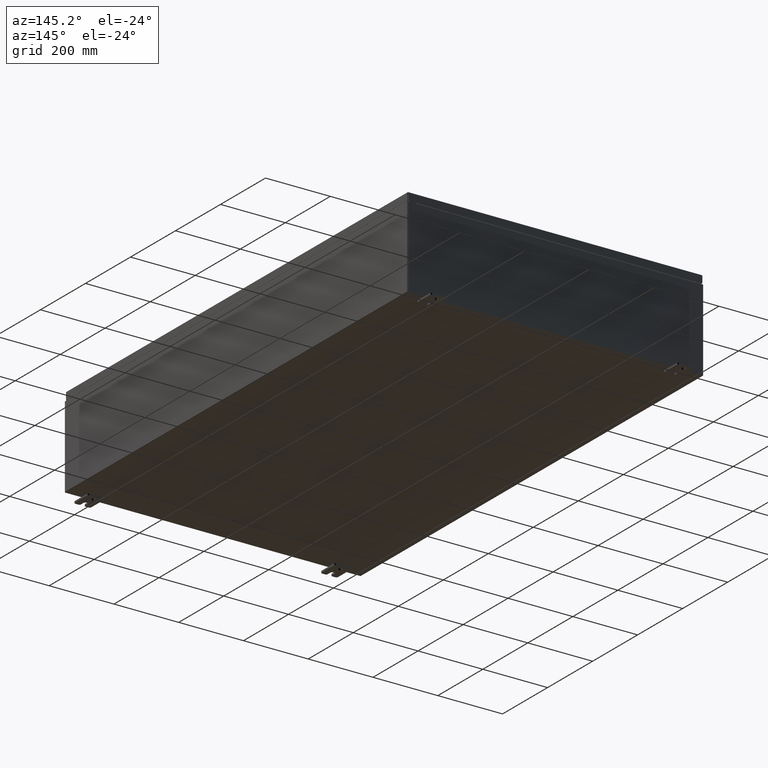
[diagram: clean part render]
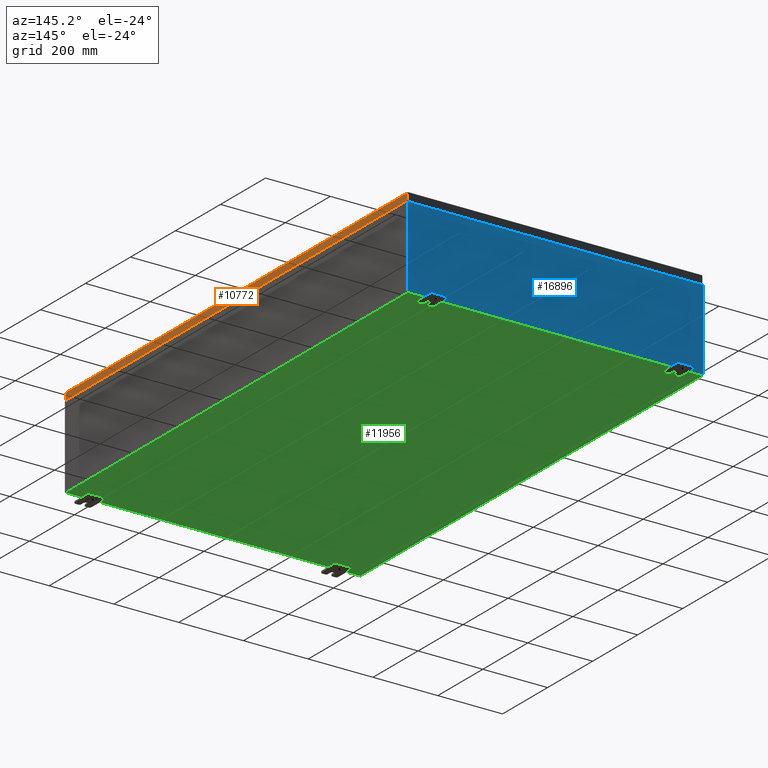
[diagram: same view with three faces highlighted in distinct colors, each labeled with its STEP entity id]
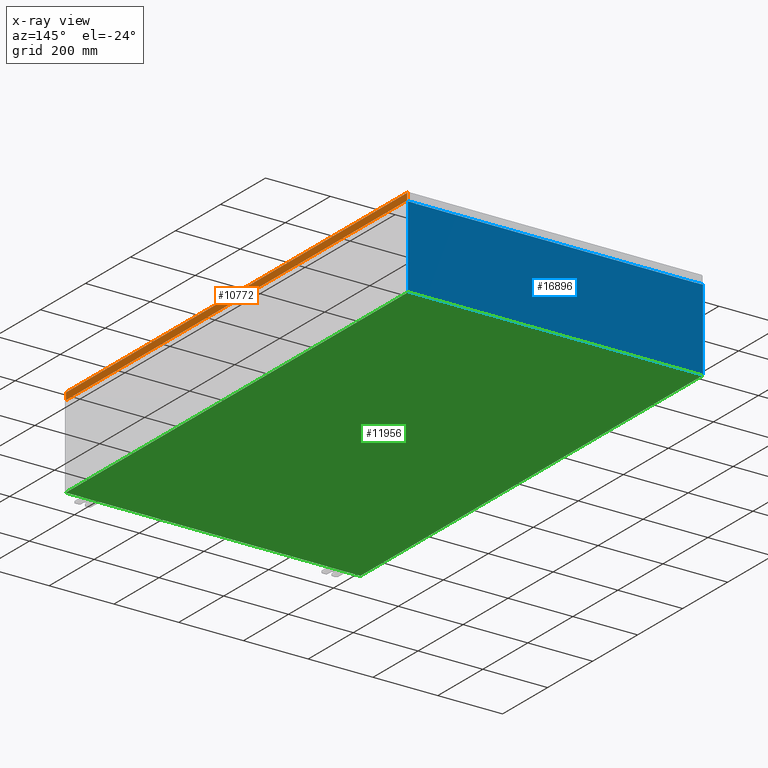
[diagram: x-ray of the same camera — body ghosted, the three highlighted faces saturated]
A machine part, auxiliary view with three faces highlighted in distinct colors.
The next image is the same camera in x-ray (body ghosted, the three faces saturated) — at least one of them is partly hidden behind the body in this view.
Their STEP definitions:

[orange] entity #10772 — the highlighted planar face has unit normal (1, 0, 0).
#3796 = CARTESIAN_POINT ( 'NONE',  ( 17.93750000000000000, 29.84865786437627500, -0.08770000000000008300 ) ) ;
#6091 = EDGE_CURVE ( 'NONE', #67473, #12984, #7999, .T. ) ;
#7999 = LINE ( 'NONE', #21186, #48868 ) ;
#8008 = CARTESIAN_POINT ( 'NONE',  ( 17.93750000000000000, -29.84865786437626100, -0.07469999999999980800 ) ) ;
#8826 = PLANE ( 'NONE',  #63696 ) ;
#9900 = LINE ( 'NONE', #46180, #36633 ) ;
#10772 = ADVANCED_FACE ( 'NONE', ( #67148 ), #8826, .T. ) ;
#12984 = VERTEX_POINT ( 'NONE', #58880 ) ;
#16790 = EDGE_LOOP ( 'NONE', ( #34291, #51374, #38243, #68511 ) ) ;
#19515 = DIRECTION ( 'NONE',  ( 1.000000000000000000, 0.0000000000000000000, 2.532419924601866100E-015 ) ) ;
#21186 = CARTESIAN_POINT ( 'NONE',  ( 17.93750000000000000, -29.93749999999998900, -0.9376999999999997600 ) ) ;
#23709 = EDGE_CURVE ( 'NONE', #67473, #30657, #9900, .T. ) ;
#25759 = VECTOR ( 'NONE', #36428, 39.37007874015748100 ) ;
#25885 = CARTESIAN_POINT ( 'NONE',  ( 17.93750000000000000, 0.0000000000000000000, -0.08770000000000008300 ) ) ;
#27804 = EDGE_CURVE ( 'NONE', #30657, #52398, #66772, .T. ) ;
#30657 = VERTEX_POINT ( 'NONE', #3796 ) ;
#32348 = EDGE_CURVE ( 'NONE', #12984, #52398, #36774, .T. ) ;
#34291 = ORIENTED_EDGE ( 'NONE', *, *, #32348, .F. ) ;
#36428 = DIRECTION ( 'NONE',  ( 0.0000000000000000000, -1.000000000000000000, 0.0000000000000000000 ) ) ;
#36633 = VECTOR ( 'NONE', #40183, 39.37007874015748100 ) ;
#36774 = LINE ( 'NONE', #8008, #38458 ) ;
#38243 = ORIENTED_EDGE ( 'NONE', *, *, #23709, .T. ) ;
#38458 = VECTOR ( 'NONE', #40015, 39.37007874015748100 ) ;
#40015 = DIRECTION ( 'NONE',  ( -2.532419924601866100E-015, -6.982962677686269100E-015, 1.000000000000000000 ) ) ;
#40183 = DIRECTION ( 'NONE',  ( -2.532419924601866100E-015, -6.982962677686269100E-015, 1.000000000000000000 ) ) ;
#42807 = CARTESIAN_POINT ( 'NONE',  ( 17.93750000000000000, -29.84865786437626100, -0.08770000000000008300 ) ) ;
#46159 = CARTESIAN_POINT ( 'NONE',  ( 17.93750000000000000, 0.0000000000000000000, 4.568609605355755400E-014 ) ) ;
#46180 = CARTESIAN_POINT ( 'NONE',  ( 17.93750000000000000, 29.84865786437627500, 2.541181598995237700E-013 ) ) ;
#48868 = VECTOR ( 'NONE', #64032, 39.37007874015748100 ) ;
#51374 = ORIENTED_EDGE ( 'NONE', *, *, #6091, .F. ) ;
#52398 = VERTEX_POINT ( 'NONE', #42807 ) ;
#56927 = DIRECTION ( 'NONE',  ( 2.532419924601866100E-015, 0.0000000000000000000, -1.000000000000000000 ) ) ;
#58880 = CARTESIAN_POINT ( 'NONE',  ( 17.93750000000000000, -29.84865786437625700, -0.9376999999999996400 ) ) ;
#63696 = AXIS2_PLACEMENT_3D ( 'NONE', #46159, #19515, #56927 ) ;
#64032 = DIRECTION ( 'NONE',  ( 0.0000000000000000000, -1.000000000000000000, 0.0000000000000000000 ) ) ;
#65962 = CARTESIAN_POINT ( 'NONE',  ( 17.93750000000000000, 29.84865786437627800, -0.9376999999999997600 ) ) ;
#66772 = LINE ( 'NONE', #25885, #25759 ) ;
#67148 = FACE_OUTER_BOUND ( 'NONE', #16790, .T. ) ;
#67473 = VERTEX_POINT ( 'NONE', #65962 ) ;
#68511 = ORIENTED_EDGE ( 'NONE', *, *, #27804, .T. ) ;

[blue] entity #16896 — the highlighted planar face has unit normal (0, -1, 0).
#971 = CARTESIAN_POINT ( 'NONE',  ( -17.92530000000000000, 0.0000000000000000000, 4.925300000000000000 ) ) ;
#976 = CARTESIAN_POINT ( 'NONE',  ( 16.88720000000000000, 0.0000000000000000000, 0.0000000000000000000 ) ) ;
#988 = EDGE_CURVE ( 'NONE', #38440, #10209, #59912, .T. ) ;
#1758 = CARTESIAN_POINT ( 'NONE',  ( -16.88720000000000000, -0.0000000000000000000, 4.874950000000000100 ) ) ;
#1994 = CARTESIAN_POINT ( 'NONE',  ( -16.92454999999999600, -0.0000000000000000000, 0.0000000000000000000 ) ) ;
#2096 = VERTEX_POINT ( 'NONE', #1758 ) ;
#2519 = CARTESIAN_POINT ( 'NONE',  ( -16.88720000000000000, -7.171100983368691200E-016, 4.912300000000000100 ) ) ;
#4505 = VERTEX_POINT ( 'NONE', #58386 ) ;
#5766 = VERTEX_POINT ( 'NONE', #56108 ) ;
#5870 = ORIENTED_EDGE ( 'NONE', *, *, #45275, .T. ) ;
#6391 = DIRECTION ( 'NONE',  ( 1.000000000000000000, 0.0000000000000000000, 0.0000000000000000000 ) ) ;
#6975 = CARTESIAN_POINT ( 'NONE',  ( 16.90587500000000200, 0.0000000000000000000, 4.874950000000000100 ) ) ;
#7086 = ORIENTED_EDGE ( 'NONE', *, *, #988, .F. ) ;
#8403 = EDGE_CURVE ( 'NONE', #10209, #56115, #42085, .T. ) ;
#10209 = VERTEX_POINT ( 'NONE', #47153 ) ;
#10759 = VECTOR ( 'NONE', #34527, 39.37007874015748100 ) ;
#12301 = DIRECTION ( 'NONE',  ( 0.0000000000000000000, 0.0000000000000000000, -1.000000000000000000 ) ) ;
#12502 = LINE ( 'NONE', #971, #53436 ) ;
#16843 = DIRECTION ( 'NONE',  ( 1.000000000000000000, 0.0000000000000000000, 0.0000000000000000000 ) ) ;
#16896 = ADVANCED_FACE ( 'NONE', ( #43226 ), #41488, .F. ) ;
#17369 = CARTESIAN_POINT ( 'NONE',  ( -17.92530000000000000, 0.0000000000000000000, -4.925300000000000000 ) ) ;
#17740 = ORIENTED_EDGE ( 'NONE', *, *, #37641, .F. ) ;
#20183 = DIRECTION ( 'NONE',  ( 0.0000000000000000000, -1.000000000000000000, 0.0000000000000000000 ) ) ;
#20368 = CARTESIAN_POINT ( 'NONE',  ( 17.92530000000000000, 0.0000000000000000000, 4.925300000000000000 ) ) ;
#20375 = EDGE_CURVE ( 'NONE', #40971, #2096, #53553, .T. ) ;
#20997 = VECTOR ( 'NONE', #48861, 39.37007874015748100 ) ;
#21614 = VECTOR ( 'NONE', #22780, 39.37007874015748100 ) ;
#22197 = CARTESIAN_POINT ( 'NONE',  ( -17.92530000000000000, 0.0000000000000000000, 4.925300000000000000 ) ) ;
#22780 = DIRECTION ( 'NONE',  ( -1.000000000000000000, -0.0000000000000000000, -0.0000000000000000000 ) ) ;
#23449 = DIRECTION ( 'NONE',  ( 0.0000000000000000000, 0.0000000000000000000, 1.000000000000000000 ) ) ;
#23751 = VECTOR ( 'NONE', #33404, 39.37007874015748100 ) ;
#23791 = CIRCLE ( 'NONE', #68224, 0.01867499999999949400 ) ;
#24253 = DIRECTION ( 'NONE',  ( 0.0000000000000000000, 0.0000000000000000000, -1.000000000000000000 ) ) ;
#24409 = LINE ( 'NONE', #43518, #20997 ) ;
#25110 = CARTESIAN_POINT ( 'NONE',  ( -16.88720000000000000, -7.171100983368691200E-016, 4.912300000000000100 ) ) ;
#25414 = VECTOR ( 'NONE', #16843, 39.37007874015748100 ) ;
#25978 = VERTEX_POINT ( 'NONE', #17369 ) ;
#26305 = EDGE_CURVE ( 'NONE', #56226, #46705, #12502, .T. ) ;
#26411 = CARTESIAN_POINT ( 'NONE',  ( -16.90587499999999800, 0.0000000000000000000, 4.874950000000000100 ) ) ;
#26723 = CARTESIAN_POINT ( 'NONE',  ( -17.92530000000000000, 0.0000000000000000000, 4.925300000000000000 ) ) ;
#27313 = EDGE_CURVE ( 'NONE', #40971, #4505, #51745, .T. ) ;
#28790 = DIRECTION ( 'NONE',  ( 0.0000000000000000000, 0.0000000000000000000, -1.000000000000000000 ) ) ;
#29060 = LINE ( 'NONE', #50871, #55822 ) ;
#29266 = VERTEX_POINT ( 'NONE', #20368 ) ;
#31564 = CARTESIAN_POINT ( 'NONE',  ( 17.92530000000000000, 0.0000000000000000000, -4.925300000000000000 ) ) ;
#31808 = DIRECTION ( 'NONE',  ( 0.0000000000000000000, 0.0000000000000000000, -1.000000000000000000 ) ) ;
#33404 = DIRECTION ( 'NONE',  ( 0.0000000000000000000, 0.0000000000000000000, 1.000000000000000000 ) ) ;
#33593 = CARTESIAN_POINT ( 'NONE',  ( -17.92530000000000000, 0.0000000000000000000, -4.925300000000000000 ) ) ;
#34527 = DIRECTION ( 'NONE',  ( 1.000000000000000000, 0.0000000000000000000, 0.0000000000000000000 ) ) ;
#35919 = LINE ( 'NONE', #33593, #21614 ) ;
#36045 = VECTOR ( 'NONE', #28790, 39.37007874015748100 ) ;
#37402 = ORIENTED_EDGE ( 'NONE', *, *, #45336, .F. ) ;
#37641 = EDGE_CURVE ( 'NONE', #2096, #5766, #23791, .T. ) ;
#37733 = CARTESIAN_POINT ( 'NONE',  ( -16.92454999999999600, 0.0000000000000000000, 4.925300000000000000 ) ) ;
#38195 = EDGE_LOOP ( 'NONE', ( #53806, #17740, #68208, #53895, #37402, #52607, #7086, #5870, #38608, #46164, #54771, #66714 ) ) ;
#38440 = VERTEX_POINT ( 'NONE', #62615 ) ;
#38608 = ORIENTED_EDGE ( 'NONE', *, *, #67022, .T. ) ;
#39684 = LINE ( 'NONE', #976, #23751 ) ;
#40971 = VERTEX_POINT ( 'NONE', #25110 ) ;
#41378 = EDGE_CURVE ( 'NONE', #25978, #56226, #24409, .T. ) ;
#41488 = PLANE ( 'NONE',  #52712 ) ;
#42085 = CIRCLE ( 'NONE', #68109, 0.01867499999999949400 ) ;
#43226 = FACE_OUTER_BOUND ( 'NONE', #38195, .T. ) ;
#43518 = CARTESIAN_POINT ( 'NONE',  ( -17.92530000000000000, 0.0000000000000000000, 4.925300000000000000 ) ) ;
#44309 = DIRECTION ( 'NONE',  ( -0.0000000000000000000, 1.000000000000000000, -0.0000000000000000000 ) ) ;
#44919 = VERTEX_POINT ( 'NONE', #31564 ) ;
#45275 = EDGE_CURVE ( 'NONE', #38440, #29266, #53821, .T. ) ;
#45336 = EDGE_CURVE ( 'NONE', #56115, #4505, #39684, .T. ) ;
#45699 = VECTOR ( 'NONE', #55510, 39.37007874015748100 ) ;
#46164 = ORIENTED_EDGE ( 'NONE', *, *, #52022, .T. ) ;
#46705 = VERTEX_POINT ( 'NONE', #37733 ) ;
#47153 = CARTESIAN_POINT ( 'NONE',  ( 16.92455000000000000, 0.0000000000000000000, 4.874950000000000100 ) ) ;
#47223 = EDGE_CURVE ( 'NONE', #5766, #46705, #62970, .T. ) ;
#47981 = CARTESIAN_POINT ( 'NONE',  ( 16.88720000000000000, 0.0000000000000000000, 4.874950000000000100 ) ) ;
#48861 = DIRECTION ( 'NONE',  ( -0.0000000000000000000, -0.0000000000000000000, 1.000000000000000000 ) ) ;
#50871 = CARTESIAN_POINT ( 'NONE',  ( 17.92530000000000000, 0.0000000000000000000, 4.925300000000000000 ) ) ;
#51745 = LINE ( 'NONE', #2519, #10759 ) ;
#52022 = EDGE_CURVE ( 'NONE', #44919, #25978, #35919, .T. ) ;
#52218 = CARTESIAN_POINT ( 'NONE',  ( 0.0000000000000000000, 0.0000000000000000000, 0.0000000000000000000 ) ) ;
#52607 = ORIENTED_EDGE ( 'NONE', *, *, #8403, .F. ) ;
#52712 = AXIS2_PLACEMENT_3D ( 'NONE', #52218, #20183, #57583 ) ;
#53436 = VECTOR ( 'NONE', #6391, 39.37007874015748100 ) ;
#53553 = LINE ( 'NONE', #66221, #36045 ) ;
#53806 = ORIENTED_EDGE ( 'NONE', *, *, #47223, .F. ) ;
#53821 = LINE ( 'NONE', #22197, #25414 ) ;
#53895 = ORIENTED_EDGE ( 'NONE', *, *, #27313, .T. ) ;
#54771 = ORIENTED_EDGE ( 'NONE', *, *, #41378, .T. ) ;
#55510 = DIRECTION ( 'NONE',  ( -8.681145560800009800E-014, 0.0000000000000000000, -1.000000000000000000 ) ) ;
#55822 = VECTOR ( 'NONE', #24253, 39.37007874015748100 ) ;
#56108 = CARTESIAN_POINT ( 'NONE',  ( -16.92454999999999600, 0.0000000000000000000, 4.874950000000000100 ) ) ;
#56115 = VERTEX_POINT ( 'NONE', #47981 ) ;
#56226 = VERTEX_POINT ( 'NONE', #26723 ) ;
#56680 = CARTESIAN_POINT ( 'NONE',  ( 16.92454999999957700, -0.0000000000000000000, -1.469244821010341400E-012 ) ) ;
#57583 = DIRECTION ( 'NONE',  ( 0.0000000000000000000, -0.0000000000000000000, -1.000000000000000000 ) ) ;
#58386 = CARTESIAN_POINT ( 'NONE',  ( 16.88720000000000000, 0.0000000000000000000, 4.912300000000000100 ) ) ;
#59912 = LINE ( 'NONE', #56680, #45699 ) ;
#61265 = VECTOR ( 'NONE', #23449, 39.37007874015748100 ) ;
#62615 = CARTESIAN_POINT ( 'NONE',  ( 16.92455000000000000, 0.0000000000000000000, 4.925300000000000000 ) ) ;
#62970 = LINE ( 'NONE', #1994, #61265 ) ;
#63861 = DIRECTION ( 'NONE',  ( -0.0000000000000000000, 1.000000000000000000, -0.0000000000000000000 ) ) ;
#66221 = CARTESIAN_POINT ( 'NONE',  ( -16.88720000000000000, -0.0000000000000000000, 0.0000000000000000000 ) ) ;
#66714 = ORIENTED_EDGE ( 'NONE', *, *, #26305, .T. ) ;
#67022 = EDGE_CURVE ( 'NONE', #29266, #44919, #29060, .T. ) ;
#68109 = AXIS2_PLACEMENT_3D ( 'NONE', #6975, #44309, #12301 ) ;
#68208 = ORIENTED_EDGE ( 'NONE', *, *, #20375, .F. ) ;
#68224 = AXIS2_PLACEMENT_3D ( 'NONE', #26411, #63861, #31808 ) ;

[green] entity #11956 — the highlighted planar face has unit normal (0, 0, -1).
#672 = DIRECTION ( 'NONE',  ( -0.0000000000000000000, 1.000000000000000000, -0.0000000000000000000 ) ) ;
#3596 = DIRECTION ( 'NONE',  ( 0.0000000000000000000, 0.0000000000000000000, -1.000000000000000000 ) ) ;
#4894 = LINE ( 'NONE', #5848, #58361 ) ;
#5848 = CARTESIAN_POINT ( 'NONE',  ( -17.91230000000000200, -29.92530000000002100, -0.07469999999999994700 ) ) ;
#11413 = CARTESIAN_POINT ( 'NONE',  ( -17.91230000000000200, -29.92530000000001100, -0.07469999999999994700 ) ) ;
#11654 = CARTESIAN_POINT ( 'NONE',  ( 17.91229999999999800, 29.92529999999999300, -0.07469999999999994700 ) ) ;
#11956 = ADVANCED_FACE ( 'NONE', ( #56993 ), #35584, .T. ) ;
#14247 = VECTOR ( 'NONE', #16995, 39.37007874015748100 ) ;
#15499 = DIRECTION ( 'NONE',  ( -1.000000000000000000, -0.0000000000000000000, -0.0000000000000000000 ) ) ;
#16548 = ORIENTED_EDGE ( 'NONE', *, *, #20005, .F. ) ;
#16995 = DIRECTION ( 'NONE',  ( 1.000000000000000000, 0.0000000000000000000, 0.0000000000000000000 ) ) ;
#19320 = VECTOR ( 'NONE', #15499, 39.37007874015748100 ) ;
#19570 = CARTESIAN_POINT ( 'NONE',  ( 17.91229999999999800, 29.92529999999999300, -0.07469999999999994700 ) ) ;
#19878 = VERTEX_POINT ( 'NONE', #39943 ) ;
#20005 = EDGE_CURVE ( 'NONE', #21825, #62761, #60300, .T. ) ;
#21108 = EDGE_CURVE ( 'NONE', #39393, #19878, #26738, .T. ) ;
#21825 = VERTEX_POINT ( 'NONE', #19570 ) ;
#24793 = CARTESIAN_POINT ( 'NONE',  ( 0.0000000000000000000, 0.0000000000000000000, -0.07470000000000000300 ) ) ;
#26738 = LINE ( 'NONE', #44355, #14247 ) ;
#27975 = DIRECTION ( 'NONE',  ( -0.0000000000000000000, -1.000000000000000000, -0.0000000000000000000 ) ) ;
#35584 = PLANE ( 'NONE',  #46264 ) ;
#37424 = LINE ( 'NONE', #11654, #49958 ) ;
#39393 = VERTEX_POINT ( 'NONE', #11413 ) ;
#39943 = CARTESIAN_POINT ( 'NONE',  ( 17.91229999999999800, -29.92530000000001100, -0.07470000000000000300 ) ) ;
#40987 = DIRECTION ( 'NONE',  ( -1.000000000000000000, 0.0000000000000000000, -0.0000000000000000000 ) ) ;
#42023 = ORIENTED_EDGE ( 'NONE', *, *, #21108, .F. ) ;
#43094 = ORIENTED_EDGE ( 'NONE', *, *, #66732, .T. ) ;
#44355 = CARTESIAN_POINT ( 'NONE',  ( -18.00000000000000400, -29.92530000000001100, -0.07470000000000000300 ) ) ;
#46264 = AXIS2_PLACEMENT_3D ( 'NONE', #24793, #3596, #40987 ) ;
#49072 = ORIENTED_EDGE ( 'NONE', *, *, #67881, .T. ) ;
#49958 = VECTOR ( 'NONE', #27975, 39.37007874015748100 ) ;
#52903 = CARTESIAN_POINT ( 'NONE',  ( -18.00000000000000400, 29.92529999999998900, -0.07470000000000000300 ) ) ;
#56993 = FACE_OUTER_BOUND ( 'NONE', #65525, .T. ) ;
#58361 = VECTOR ( 'NONE', #672, 39.37007874015748100 ) ;
#60300 = LINE ( 'NONE', #52903, #19320 ) ;
#61483 = CARTESIAN_POINT ( 'NONE',  ( -17.91230000000000200, 29.92529999999998600, -0.07470000000000000300 ) ) ;
#62761 = VERTEX_POINT ( 'NONE', #61483 ) ;
#65525 = EDGE_LOOP ( 'NONE', ( #42023, #49072, #16548, #43094 ) ) ;
#66732 = EDGE_CURVE ( 'NONE', #21825, #19878, #37424, .T. ) ;
#67881 = EDGE_CURVE ( 'NONE', #39393, #62761, #4894, .T. ) ;